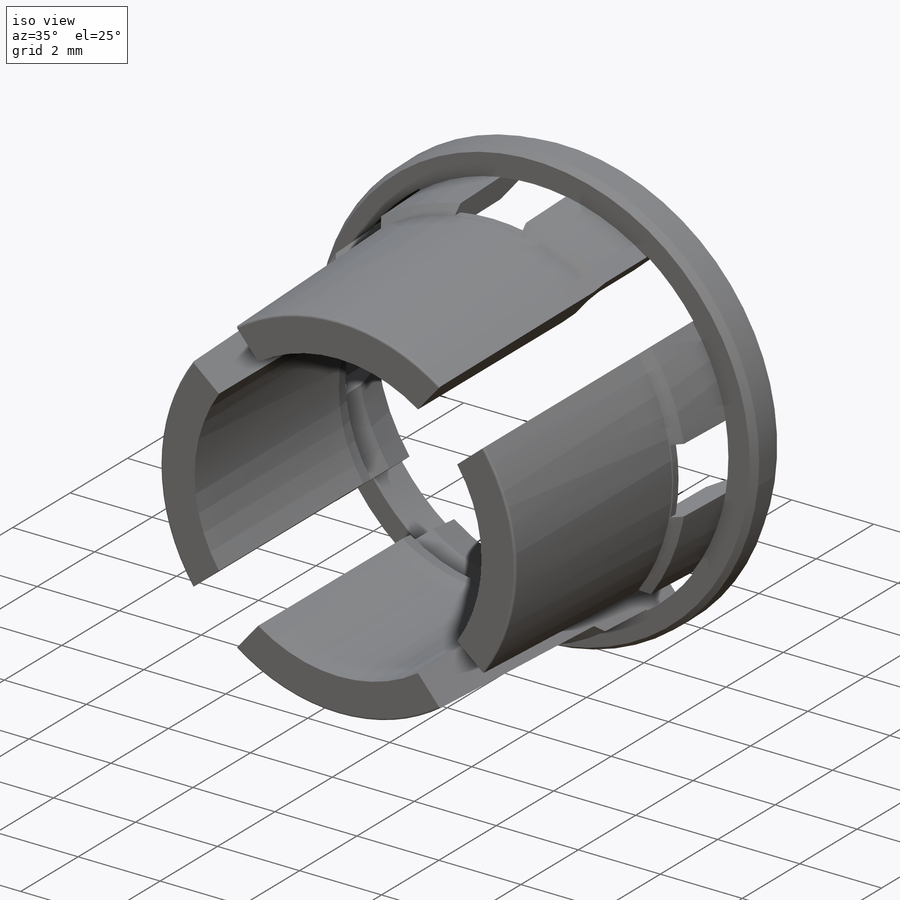
[diagram: iso view]
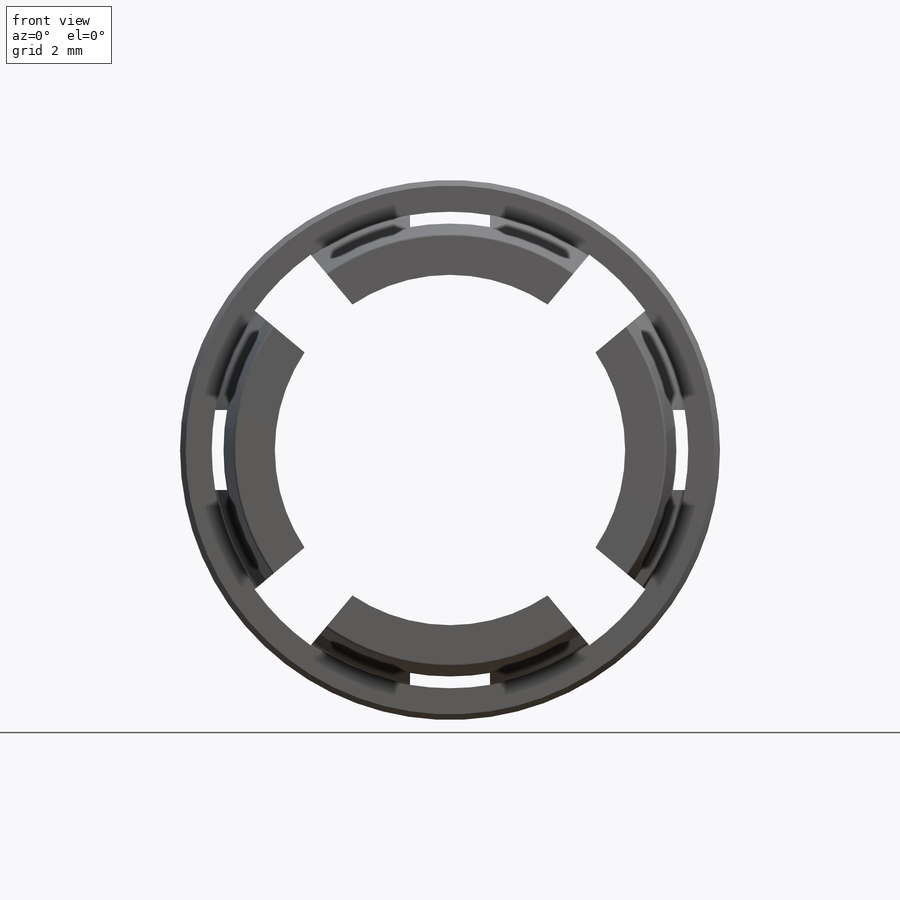
[diagram: front view]
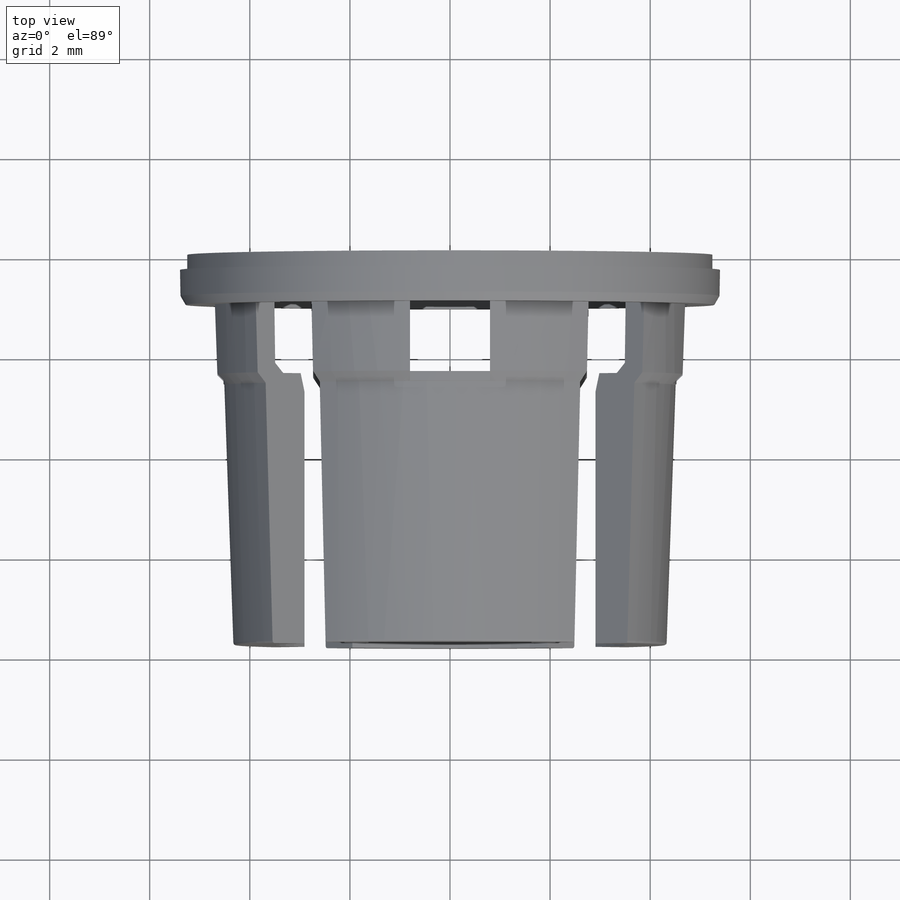
[diagram: top view]
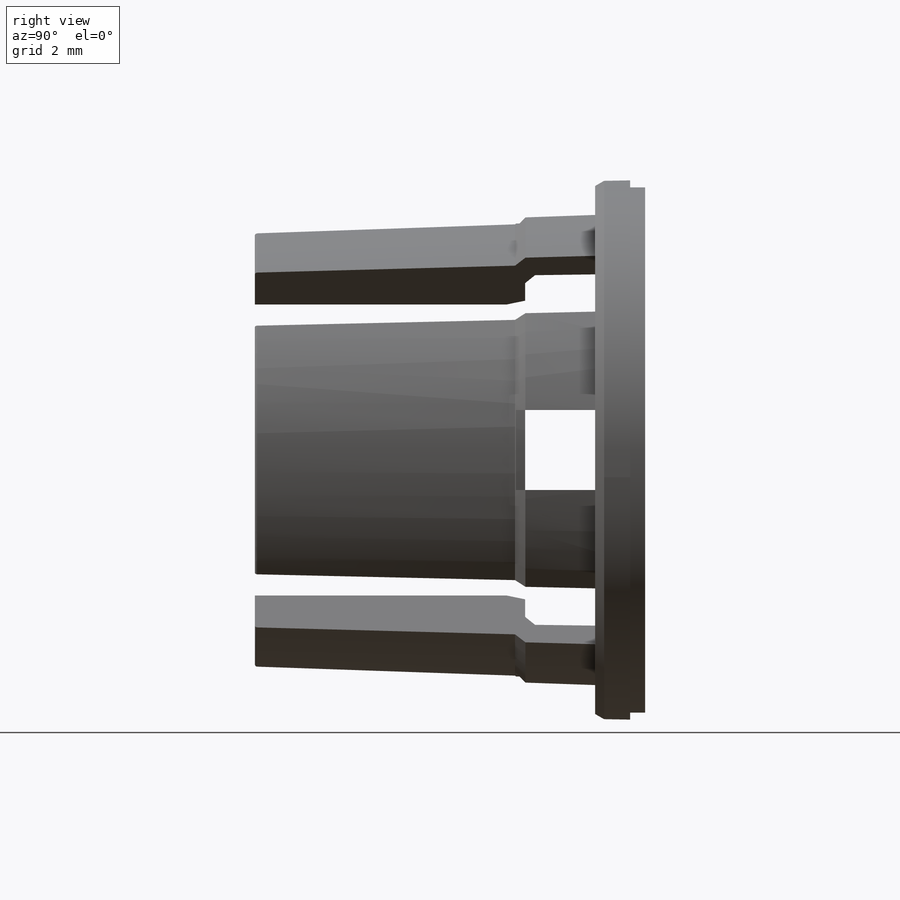
[diagram: right view]
SOLIDWORKS PART (.sldprt)
format: sldprt  version: not decoded by parser v0  size: 668,160 bytes
history: native  units: mm
features: sketch x9, cut_extrude x6, chamfer x5, plane x3, extrude x3, pattern_circular x3, material x1, fillet x1 + 1 further entry (+12 scaffold rows collapsed)
feature tree (44):
  scaffold x12  (default folders/planes/origin — collapsed)
  material  "Material <not specified>"
  plane  "Plane1"
  plane  "Plane2"
  plane  "Plane3"
  "Design Table"
  sketch  "Sketch1"  dims[c1.D1=13.2mm c1.D2=13.0mm c2.D1=13.4mm c2.D4=10.8mm c2.D2=6.0mm c2.D3=1.0mm]
  extrude  "Collar"  Depth=1mm
  sketch  "Sketch2"  dims[D1=9.2mm]
  extrude  "Sleeve outside"  Depth=7.8mm
  sketch  "Sketch11"  dims[D1=9.6mm]
  extrude  "Extrude1"  Depth=2.6mm
  chamfer  "Chamfer3"  Distance=0.2mm Angle=45deg
  sketch  "Sketch3"  dims[D1=8.6mm D2=9.525mm]
  cut_extrude  "Entrence oversize hole for shaft"  Depth=2.4mm
  chamfer  "Chamfer4"  Distance=0.2mm Angle=45deg
  chamfer  "Chamfer1"  Distance=0.25mm Angle=75deg
  sketch  "Sketch6"  dims[D1=3.0mm]
  cut_extrude  "Shaft hole"  [1 undecoded]
  chamfer  "Chamfer to shaft hole"  Distance=0.1mm Angle=75deg
  sketch  "Sketch4"  dims[c1.D3=9.5mm c1.D1=0.25mm c1.D2=0.25mm c2.D1=0.7mm c2.D2=0.35mm c2.D4=0.7mm c3.D4=~134.392309deg c3.D2=0.7mm c4.D4=~14.142136mm c4.D1=0.7mm c5.D4=~14.142136mm c5.D1=0.8mm c6.D4=0.8mm]
  cut_extrude  "Slots in sleeve(1)"  Depth=10mm
  pattern_circular  "CirPattern2"  Count=4 Angle=360deg
  fillet  "Fillet outside sleve end"  Radius=0.05mm
  sketch  "Sketch7"  dims[c1.D2=4.75mm c1.D1=1.0mm c2.D2=4.825mm c2.D1=1.6mm c2.D3=10.0mm]
  cut_extrude  "small slot(1)"  [1 undecoded]
  pattern_circular  "CirPattern1"  Count=4 Angle=360deg
  chamfer  "Chamfer2"  Distance=0.1mm Angle=60deg
  sketch  "Sketch12"  dims[D1=4.525mm]
  cut_extrude  "Cut-Extrude1"  Depth=10mm
  pattern_circular  "CirPattern3"  Count=4 Angle=360deg
  sketch  "Sketch14"  dims[D1=5.35mm]
  cut_extrude  "Cut-Extrude2"  Depth=0.3mm
decode coverage: 25 of 27 modeling features carry decoded parameters; 1 rows unclassified (native names shown)
note: ~ marks probable driven/reference dimensions
note: 2 parameter values undecoded
note: suppression state not decoded; provenance and decode notes live in map.json
